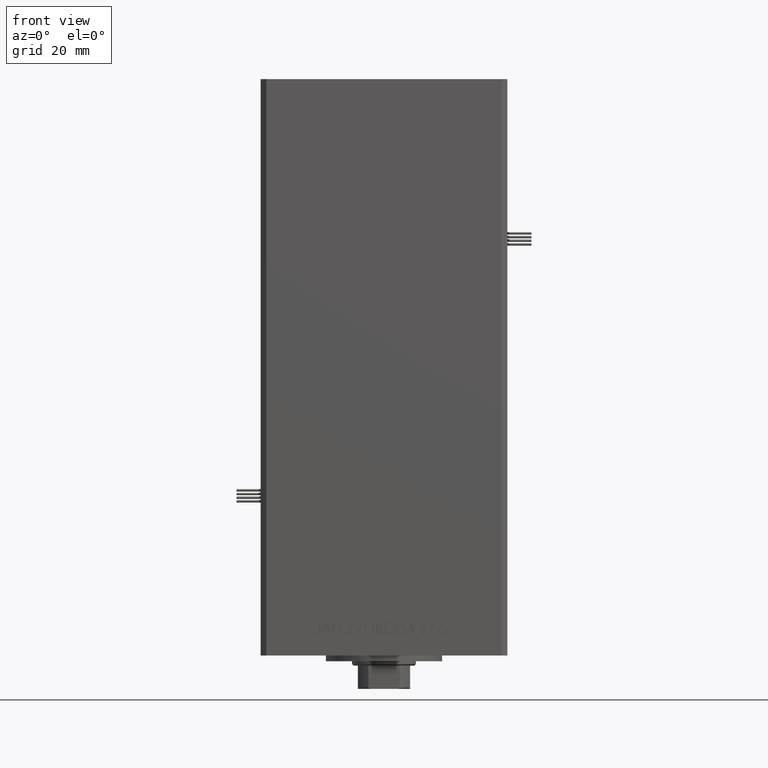
[diagram: clean part render]
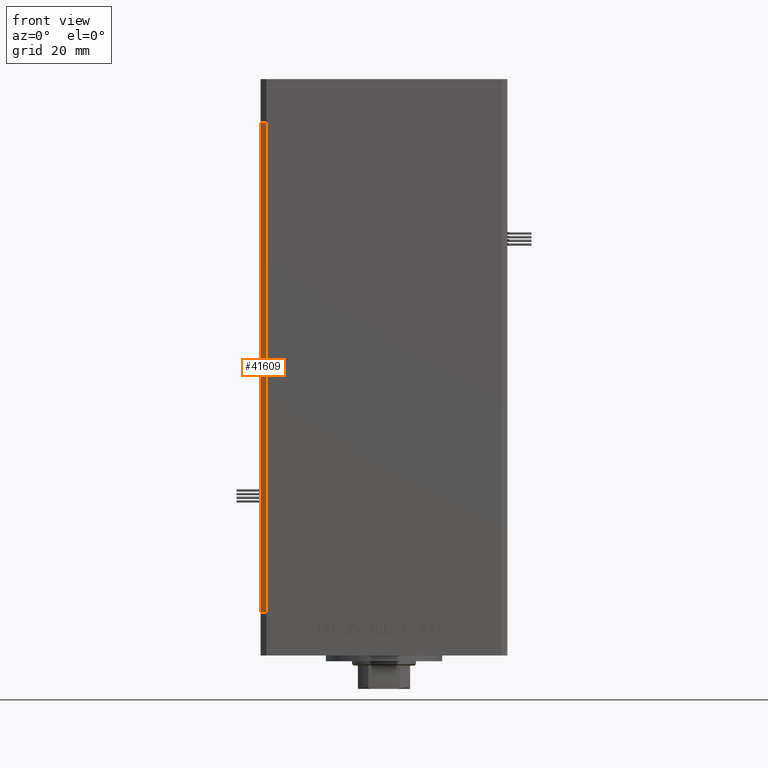
[diagram: same view with one face highlighted and labeled with its STEP entity id]
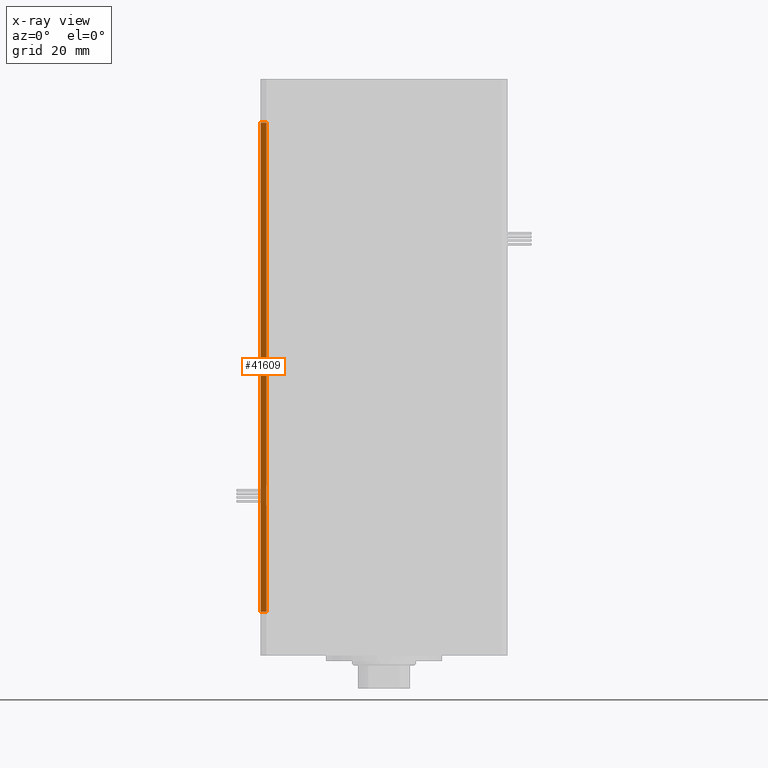
[diagram: x-ray of the same camera — body ghosted, the highlighted face saturated]
A machine part, front view. The second image highlights one B-rep face of the part: STEP entity #41609.
The next image is the same camera in x-ray: the body ghosted, the highlighted face saturated — about 0% of this face is hidden behind the body in this view.
In plain terms, the highlighted planar face has unit normal (0.7071, 0.7071, 0).
Its self-contained STEP definition (entity closure, byte-faithful):
#3263 = PLANE ( 'NONE',  #10027 ) ;
#4574 = LINE ( 'NONE', #45581, #26803 ) ;
#4947 = LINE ( 'NONE', #20977, #38812 ) ;
#5881 = CARTESIAN_POINT ( 'NONE',  ( -40.49999999999998579, -37.50000000000000711, 0.000000000000000000 ) ) ;
#8487 = EDGE_CURVE ( 'NONE', #24429, #12194, #4574, .T. ) ;
#10027 = AXIS2_PLACEMENT_3D ( 'NONE', #38789, #51854, #27199 ) ;
#11789 = CARTESIAN_POINT ( 'NONE',  ( -40.49999999999998579, -37.50000000000000711, 168.5000000000000000 ) ) ;
#12194 = VERTEX_POINT ( 'NONE', #50050 ) ;
#14020 = DIRECTION ( 'NONE',  ( 0.7071067811865474617, -0.7071067811865474617, 0.000000000000000000 ) ) ;
#16729 = ORIENTED_EDGE ( 'NONE', *, *, #37426, .F. ) ;
#16894 = ORIENTED_EDGE ( 'NONE', *, *, #8487, .T. ) ;
#20977 = CARTESIAN_POINT ( 'NONE',  ( -42.49999999999998579, -35.50000000000000711, 0.000000000000000000 ) ) ;
#21135 = DIRECTION ( 'NONE',  ( -0.000000000000000000, -0.000000000000000000, -1.000000000000000000 ) ) ;
#21890 = EDGE_CURVE ( 'NONE', #12194, #39166, #4947, .T. ) ;
#23808 = ORIENTED_EDGE ( 'NONE', *, *, #50345, .F. ) ;
#24429 = VERTEX_POINT ( 'NONE', #43560 ) ;
#25584 = CARTESIAN_POINT ( 'NONE',  ( -42.49999999999998579, -35.50000000000000711, 168.5000000000000000 ) ) ;
#26803 = VECTOR ( 'NONE', #21135, 1000.000000000000000 ) ;
#27199 = DIRECTION ( 'NONE',  ( -0.7071067811865474617, 0.7071067811865474617, 0.000000000000000000 ) ) ;
#27418 = VECTOR ( 'NONE', #43216, 1000.000000000000000 ) ;
#35339 = FACE_OUTER_BOUND ( 'NONE', #39986, .T. ) ;
#36762 = DIRECTION ( 'NONE',  ( 0.7071067811865474617, -0.7071067811865474617, 0.000000000000000000 ) ) ;
#37023 = VECTOR ( 'NONE', #14020, 1000.000000000000114 ) ;
#37426 = EDGE_CURVE ( 'NONE', #48662, #39166, #43724, .T. ) ;
#38789 = CARTESIAN_POINT ( 'NONE',  ( -42.49999999999998579, -35.50000000000000711, 168.5000000000000000 ) ) ;
#38812 = VECTOR ( 'NONE', #36762, 1000.000000000000114 ) ;
#39166 = VERTEX_POINT ( 'NONE', #5881 ) ;
#39986 = EDGE_LOOP ( 'NONE', ( #43039, #16729, #23808, #16894 ) ) ;
#41609 = ADVANCED_FACE ( 'NONE', ( #35339 ), #3263, .F. ) ;
#43039 = ORIENTED_EDGE ( 'NONE', *, *, #21890, .T. ) ;
#43216 = DIRECTION ( 'NONE',  ( -0.000000000000000000, -0.000000000000000000, -1.000000000000000000 ) ) ;
#43560 = CARTESIAN_POINT ( 'NONE',  ( -42.49999999999998579, -35.50000000000000711, 168.5000000000000000 ) ) ;
#43724 = LINE ( 'NONE', #43985, #27418 ) ;
#43985 = CARTESIAN_POINT ( 'NONE',  ( -40.49999999999998579, -37.50000000000000711, 168.5000000000000000 ) ) ;
#45581 = CARTESIAN_POINT ( 'NONE',  ( -42.49999999999998579, -35.50000000000000711, 168.5000000000000000 ) ) ;
#46077 = LINE ( 'NONE', #25584, #37023 ) ;
#48662 = VERTEX_POINT ( 'NONE', #11789 ) ;
#50050 = CARTESIAN_POINT ( 'NONE',  ( -42.49999999999998579, -35.50000000000000711, 0.000000000000000000 ) ) ;
#50345 = EDGE_CURVE ( 'NONE', #24429, #48662, #46077, .T. ) ;
#51854 = DIRECTION ( 'NONE',  ( 0.7071067811865475727, 0.7071067811865475727, -0.000000000000000000 ) ) ;